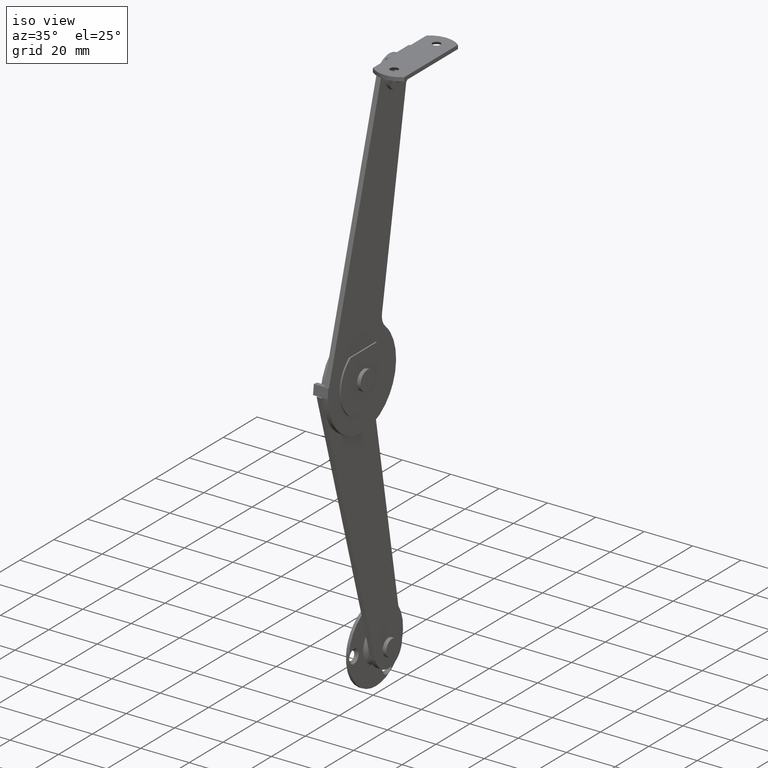
[diagram: clean part render]
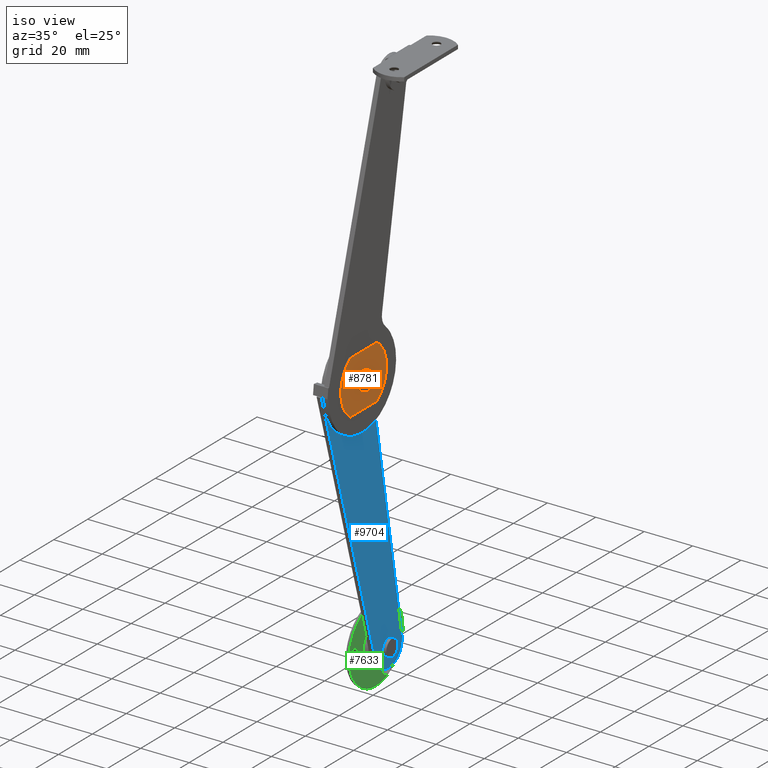
[diagram: same view with three faces highlighted in distinct colors, each labeled with its STEP entity id]
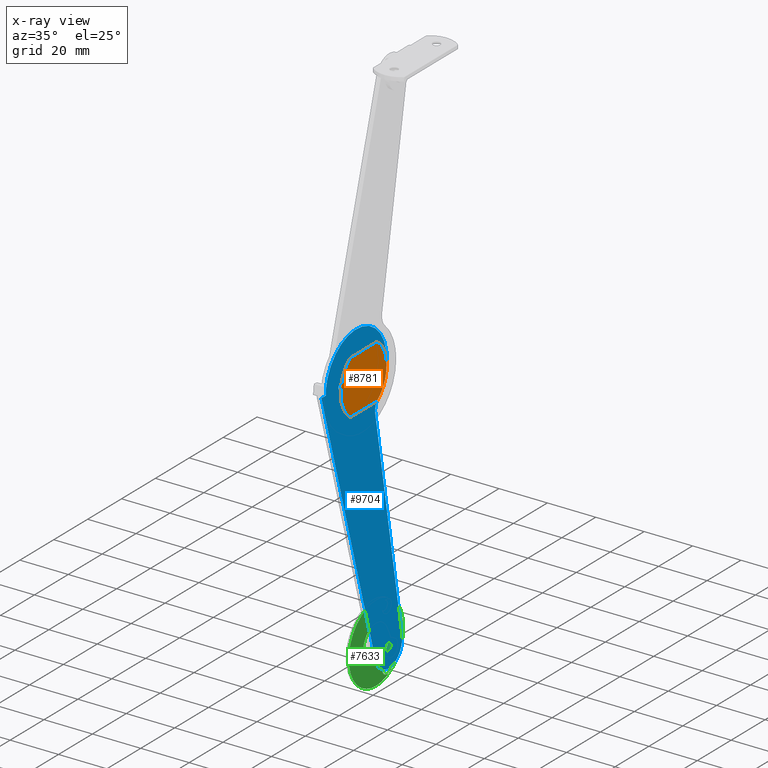
[diagram: x-ray of the same camera — body ghosted, the three highlighted faces saturated]
A machine part, iso view with three faces highlighted in distinct colors.
The next image is the same camera in x-ray (body ghosted, the three faces saturated) — at least one of them is partly hidden behind the body in this view.
Their STEP definitions:

[orange] entity #8781 — the highlighted face is a freeform B-spline surface patch.
#7729=CARTESIAN_POINT('',(9.500000000000000,-19.101287999999951,1.499999999999999));
#7730=VERTEX_POINT('',#7729);
#7731=CARTESIAN_POINT('',(9.500000000000000,-20.596664000404989,0.117688646065020));
#7732=VERTEX_POINT('',#7731);
#7733=CARTESIAN_POINT('',(9.500000000000000,-19.101287999999951,1.499999999999999));
#7734=CARTESIAN_POINT('',(9.500000000000000,-20.487873732886431,1.499999999999999));
#7735=CARTESIAN_POINT('',(9.500000000000002,-20.596664000404992,0.117688646065020));
#7743=(BOUNDED_CURVE()B_SPLINE_CURVE(2,(#7733,#7734,#7735),.UNSPECIFIED.,.F.,.U.)B_SPLINE_CURVE_WITH_KNOTS((3,3),(0.0,0.236331300065717),.UNSPECIFIED.)CURVE()GEOMETRIC_REPRESENTATION_ITEM()RATIONAL_B_SPLINE_CURVE((1.0,0.723120659269537,0.969723354988426))REPRESENTATION_ITEM(''));
#7744=EDGE_CURVE('',#7730,#7732,#7743,.T.);
#7785=CARTESIAN_POINT('',(9.500000000000000,-17.605911999594909,-0.117688646065023));
#7786=VERTEX_POINT('',#7785);
#7792=CARTESIAN_POINT('',(9.500000000000000,-17.605911999594909,-0.117688646065023));
#7793=CARTESIAN_POINT('',(9.500000000000000,-17.601287999999943,-0.058935162996237));
#7794=CARTESIAN_POINT('',(9.500000000000000,-17.601287999999951,-1.169578E-015));
#7795=CARTESIAN_POINT('',(9.500000000000000,-17.601287999999951,1.500000000000000));
#7796=CARTESIAN_POINT('',(9.500000000000000,-19.101287999999951,1.499999999999999));
#7804=(BOUNDED_CURVE()B_SPLINE_CURVE(2,(#7792,#7793,#7794,#7795,#7796),.UNSPECIFIED.,.F.,.U.)B_SPLINE_CURVE_WITH_KNOTS((3,2,3),(0.736331300065717,0.750000000000000,1.0),.UNSPECIFIED.)CURVE()GEOMETRIC_REPRESENTATION_ITEM()RATIONAL_B_SPLINE_CURVE((0.969723354988426,0.983986121917011,1.0,0.707106781186548,1.0))REPRESENTATION_ITEM(''));
#7805=EDGE_CURVE('',#7786,#7730,#7804,.T.);
#7828=CARTESIAN_POINT('',(9.500000000000000,-19.101287999999951,-1.500000000000001));
#7829=VERTEX_POINT('',#7828);
#7830=CARTESIAN_POINT('',(9.500000000000000,-20.596664000404996,0.117688646065020));
#7831=CARTESIAN_POINT('',(9.500000000000000,-20.601287999999951,0.058935162996235));
#7832=CARTESIAN_POINT('',(9.500000000000000,-20.601287999999951,-1.169578E-015));
#7833=CARTESIAN_POINT('',(9.500000000000000,-20.601287999999947,-1.500000000000001));
#7834=CARTESIAN_POINT('',(9.500000000000000,-19.101287999999951,-1.500000000000001));
#7842=(BOUNDED_CURVE()B_SPLINE_CURVE(2,(#7830,#7831,#7832,#7833,#7834),.UNSPECIFIED.,.F.,.U.)B_SPLINE_CURVE_WITH_KNOTS((3,2,3),(0.236331300065717,0.250000000000000,0.500000000000000),.UNSPECIFIED.)CURVE()GEOMETRIC_REPRESENTATION_ITEM()RATIONAL_B_SPLINE_CURVE((0.969723354988426,0.983986121917011,1.0,0.707106781186548,1.0))REPRESENTATION_ITEM(''));
#7843=EDGE_CURVE('',#7732,#7829,#7842,.T.);
#7845=CARTESIAN_POINT('',(9.500000000000000,-19.101287999999951,-1.500000000000001));
#7846=CARTESIAN_POINT('',(9.500000000000000,-17.714702267113463,-1.500000000000000));
#7847=CARTESIAN_POINT('',(9.500000000000000,-17.605911999594905,-0.117688646065023));
#7855=(BOUNDED_CURVE()B_SPLINE_CURVE(2,(#7845,#7846,#7847),.UNSPECIFIED.,.F.,.U.)B_SPLINE_CURVE_WITH_KNOTS((3,3),(0.500000000000000,0.736331300065717),.UNSPECIFIED.)CURVE()GEOMETRIC_REPRESENTATION_ITEM()RATIONAL_B_SPLINE_CURVE((1.0,0.723120659269537,0.969723354988427))REPRESENTATION_ITEM(''));
#7856=EDGE_CURVE('',#7829,#7786,#7855,.T.);
#8199=CARTESIAN_POINT('',(9.500000000000000,-11.275051362627041,11.000000913447320));
#8200=VERTEX_POINT('',#8199);
#8201=CARTESIAN_POINT('',(9.500000000000000,-26.927525921249000,11.000000000000160));
#8202=VERTEX_POINT('',#8201);
#8203=CARTESIAN_POINT('',(9.500000000000000,-11.275051362627041,11.000000913447320));
#8204=CARTESIAN_POINT('',(9.500000000000000,-26.927525921249000,11.000000000000160));
#8205=QUASI_UNIFORM_CURVE('',1,(#8203,#8204),.UNSPECIFIED.,.F.,.U.);
#8206=EDGE_CURVE('',#8200,#8202,#8205,.T.);
#8244=CARTESIAN_POINT('',(9.500000000000000,-11.275055000000179,-11.0));
#8245=VERTEX_POINT('',#8244);
#8246=CARTESIAN_POINT('',(9.500000000000000,-11.275055000000179,-11.0));
#8247=CARTESIAN_POINT('',(9.500000000000000,-5.601289978229050,-6.963254547218265));
#8248=CARTESIAN_POINT('',(9.500000000000000,-5.601288826958422,-0.000000054806431));
#8249=CARTESIAN_POINT('',(9.500000000000000,-5.601287675687794,6.963254437605401));
#8250=CARTESIAN_POINT('',(9.500000000000000,-11.275051362627041,11.000000913447320));
#8258=(BOUNDED_CURVE()B_SPLINE_CURVE(2,(#8246,#8247,#8248,#8249,#8250),.UNSPECIFIED.,.F.,.U.)B_SPLINE_CURVE_WITH_KNOTS((3,2,3),(0.0,0.500000000000000,1.0),.UNSPECIFIED.)CURVE()GEOMETRIC_REPRESENTATION_ITEM()RATIONAL_B_SPLINE_CURVE((1.0,0.888741008094217,1.0,0.888741008094217,1.0))REPRESENTATION_ITEM(''));
#8259=EDGE_CURVE('',#8245,#8200,#8258,.T.);
#8292=CARTESIAN_POINT('',(9.500000000000000,-26.927525921249199,-11.0));
#8293=VERTEX_POINT('',#8292);
#8294=CARTESIAN_POINT('',(9.500000000000000,-26.927525921249199,-11.0));
#8295=CARTESIAN_POINT('',(9.500000000000000,-11.275055000000179,-11.0));
#8296=QUASI_UNIFORM_CURVE('',1,(#8294,#8295),.UNSPECIFIED.,.F.,.U.);
#8297=EDGE_CURVE('',#8293,#8245,#8296,.T.);
#8329=CARTESIAN_POINT('',(9.500000000000000,-26.927525921248989,11.000000000000160));
#8330=CARTESIAN_POINT('',(9.500000000000000,-32.601287999999954,6.963253460285164));
#8331=CARTESIAN_POINT('',(9.500000000000000,-32.601287999999947,0.0));
#8332=CARTESIAN_POINT('',(9.500000000000000,-32.601287999999954,-6.963253460285001));
#8333=CARTESIAN_POINT('',(9.500000000000000,-26.927525921249199,-11.000000000000011));
#8341=(BOUNDED_CURVE()B_SPLINE_CURVE(2,(#8329,#8330,#8331,#8332,#8333),.UNSPECIFIED.,.F.,.U.)B_SPLINE_CURVE_WITH_KNOTS((3,2,3),(0.0,0.500000000000000,1.0),.UNSPECIFIED.)CURVE()GEOMETRIC_REPRESENTATION_ITEM()RATIONAL_B_SPLINE_CURVE((1.0,0.888741055510526,1.0,0.888741055510526,1.0))REPRESENTATION_ITEM(''));
#8342=EDGE_CURVE('',#8202,#8293,#8341,.T.);
#8764=CARTESIAN_POINT('',(9.500000000000108,-33.949937906362130,-12.098900002986420));
#8765=CARTESIAN_POINT('',(9.500000000000108,-4.252638196399884,-12.098900002986420));
#8766=CARTESIAN_POINT('',(9.500000000000108,-33.949937906362130,12.098901506519750));
#8767=CARTESIAN_POINT('',(9.500000000000108,-4.252638196399884,12.098901506519750));
#8768=B_SPLINE_SURFACE_WITH_KNOTS('',1,1,((#8764,#8766),(#8765,#8767)),.UNSPECIFIED.,.F.,.F.,.U.,(2,2),(2,2),(0.0,29.697299709962241),(0.0,24.197801509506171),.UNSPECIFIED.);
#8769=ORIENTED_EDGE('',*,*,#8342,.T.);
#8770=ORIENTED_EDGE('',*,*,#8297,.T.);
#8771=ORIENTED_EDGE('',*,*,#8259,.T.);
#8772=ORIENTED_EDGE('',*,*,#8206,.T.);
#8773=EDGE_LOOP('',(#8769,#8770,#8771,#8772));
#8774=FACE_OUTER_BOUND('',#8773,.T.);
#8775=ORIENTED_EDGE('',*,*,#7856,.F.);
#8776=ORIENTED_EDGE('',*,*,#7843,.F.);
#8777=ORIENTED_EDGE('',*,*,#7744,.F.);
#8778=ORIENTED_EDGE('',*,*,#7805,.F.);
#8779=EDGE_LOOP('',(#8775,#8776,#8777,#8778));
#8780=FACE_BOUND('',#8779,.T.);
#8781=ADVANCED_FACE('',(#8774,#8780),#8768,.T.);

[blue] entity #9704 — the highlighted face is a freeform B-spline surface patch.
#8872=CARTESIAN_POINT('',(6.399994000000130,-28.601287999999951,0.999999999999975));
#8873=VERTEX_POINT('',#8872);
#8874=CARTESIAN_POINT('',(6.399994000000129,-27.604370666721120,0.078459101500214));
#8875=VERTEX_POINT('',#8874);
#8876=CARTESIAN_POINT('',(6.399994000000130,-28.601287999999951,0.999999999999975));
#8877=CARTESIAN_POINT('',(6.399994000000131,-27.676897519079738,0.999999999999975));
#8878=CARTESIAN_POINT('',(6.399994000000129,-27.604370666721124,0.078459101500214));
#8886=(BOUNDED_CURVE()B_SPLINE_CURVE(2,(#8876,#8877,#8878),.UNSPECIFIED.,.F.,.U.)B_SPLINE_CURVE_WITH_KNOTS((3,3),(0.0,0.236331298647588),.UNSPECIFIED.)CURVE()GEOMETRIC_REPRESENTATION_ITEM()RATIONAL_B_SPLINE_CURVE((1.0,0.723120660930979,0.969723352028899))REPRESENTATION_ITEM(''));
#8887=EDGE_CURVE('',#8873,#8875,#8886,.T.);
#8889=CARTESIAN_POINT('',(6.399994000000130,-29.598205333278781,-0.078459101500264));
#8890=VERTEX_POINT('',#8889);
#8891=CARTESIAN_POINT('',(6.399994000000130,-29.598205333278781,-0.078459101500264));
#8892=CARTESIAN_POINT('',(6.399994000000130,-29.601287999999951,-0.039290112806876));
#8893=CARTESIAN_POINT('',(6.399994000000130,-29.601287999999951,-2.495219E-014));
#8894=CARTESIAN_POINT('',(6.399994000000131,-29.601287999999951,0.999999999999975));
#8895=CARTESIAN_POINT('',(6.399994000000130,-28.601287999999951,0.999999999999975));
#8903=(BOUNDED_CURVE()B_SPLINE_CURVE(2,(#8891,#8892,#8893,#8894,#8895),.UNSPECIFIED.,.F.,.U.)B_SPLINE_CURVE_WITH_KNOTS((3,2,3),(0.736331298647588,0.750000000000000,1.0),.UNSPECIFIED.)CURVE()GEOMETRIC_REPRESENTATION_ITEM()RATIONAL_B_SPLINE_CURVE((0.969723352028899,0.983986120255569,1.0,0.707106781186548,1.0))REPRESENTATION_ITEM(''));
#8904=EDGE_CURVE('',#8890,#8873,#8903,.T.);
#8971=CARTESIAN_POINT('',(6.399994000000130,-28.601287999999951,-1.000000000000025));
#8972=VERTEX_POINT('',#8971);
#8973=CARTESIAN_POINT('',(6.399994000000129,-27.604370666721124,0.078459101500214));
#8974=CARTESIAN_POINT('',(6.399994000000130,-27.601287999999954,0.039290112806826));
#8975=CARTESIAN_POINT('',(6.399994000000130,-27.601287999999951,-2.495219E-014));
#8976=CARTESIAN_POINT('',(6.399994000000131,-27.601287999999958,-1.000000000000025));
#8977=CARTESIAN_POINT('',(6.399994000000130,-28.601287999999951,-1.000000000000025));
#8985=(BOUNDED_CURVE()B_SPLINE_CURVE(2,(#8973,#8974,#8975,#8976,#8977),.UNSPECIFIED.,.F.,.U.)B_SPLINE_CURVE_WITH_KNOTS((3,2,3),(0.236331298647588,0.250000000000000,0.500000000000000),.UNSPECIFIED.)CURVE()GEOMETRIC_REPRESENTATION_ITEM()RATIONAL_B_SPLINE_CURVE((0.969723352028899,0.983986120255569,1.0,0.707106781186548,1.0))REPRESENTATION_ITEM(''));
#8986=EDGE_CURVE('',#8875,#8972,#8985,.T.);
#9020=CARTESIAN_POINT('',(6.399994000000130,-28.601287999999951,-1.000000000000025));
#9021=CARTESIAN_POINT('',(6.399994000000130,-29.525678480920163,-1.000000000000025));
#9022=CARTESIAN_POINT('',(6.399994000000130,-29.598205333278777,-0.078459101500264));
#9030=(BOUNDED_CURVE()B_SPLINE_CURVE(2,(#9020,#9021,#9022),.UNSPECIFIED.,.F.,.U.)B_SPLINE_CURVE_WITH_KNOTS((3,3),(0.500000000000000,0.736331298647587),.UNSPECIFIED.)CURVE()GEOMETRIC_REPRESENTATION_ITEM()RATIONAL_B_SPLINE_CURVE((1.0,0.723120660930979,0.969723352028897))REPRESENTATION_ITEM(''));
#9031=EDGE_CURVE('',#8972,#8890,#9030,.T.);
#9058=CARTESIAN_POINT('',(6.399994000000130,-10.594297526314310,0.118034235071934));
#9059=VERTEX_POINT('',#9058);
#9060=CARTESIAN_POINT('',(6.399994000000130,-9.601288000000000,-1.000000000000026));
#9061=VERTEX_POINT('',#9060);
#9062=CARTESIAN_POINT('',(6.399994000000130,-10.594297526314310,0.118034235071934));
#9063=CARTESIAN_POINT('',(6.399994000000130,-10.601288000000002,0.059224120071475));
#9064=CARTESIAN_POINT('',(6.399994000000130,-10.601288000000000,-2.611557E-014));
#9065=CARTESIAN_POINT('',(6.399994000000131,-10.601288000000000,-1.000000000000026));
#9066=CARTESIAN_POINT('',(6.399994000000130,-9.601288000000000,-1.000000000000026));
#9074=(BOUNDED_CURVE()B_SPLINE_CURVE(2,(#9062,#9063,#9064,#9065,#9066),.UNSPECIFIED.,.F.,.U.)B_SPLINE_CURVE_WITH_KNOTS((3,2,3),(0.229562473374316,0.250000000000000,0.500000000000000),.UNSPECIFIED.)CURVE()GEOMETRIC_REPRESENTATION_ITEM()RATIONAL_B_SPLINE_CURVE((0.956026753910876,0.976055948168071,1.0,0.707106781186548,1.0))REPRESENTATION_ITEM(''));
#9075=EDGE_CURVE('',#9059,#9061,#9074,.T.);
#9077=CARTESIAN_POINT('',(6.399994000000130,-8.603153201615875,-0.061048540151942));
#9078=VERTEX_POINT('',#9077);
#9079=CARTESIAN_POINT('',(6.399994000000130,-9.601288000000000,-1.000000000000026));
#9080=CARTESIAN_POINT('',(6.399994000000130,-8.660581934259593,-1.000000000000026));
#9081=CARTESIAN_POINT('',(6.399994000000129,-8.603153201615875,-0.061048540151942));
#9089=(BOUNDED_CURVE()B_SPLINE_CURVE(2,(#9079,#9080,#9081),.UNSPECIFIED.,.F.,.U.)B_SPLINE_CURVE_WITH_KNOTS((3,3),(0.500000000000000,0.739332962028627),.UNSPECIFIED.)CURVE()GEOMETRIC_REPRESENTATION_ITEM()RATIONAL_B_SPLINE_CURVE((1.0,0.719603993533111,0.976072041215970))REPRESENTATION_ITEM(''));
#9090=EDGE_CURVE('',#9061,#9078,#9089,.T.);
#9157=CARTESIAN_POINT('',(6.399994000000130,-9.601288000000000,0.999999999999974));
#9158=VERTEX_POINT('',#9157);
#9159=CARTESIAN_POINT('',(6.399994000000130,-9.601288000000000,0.999999999999974));
#9160=CARTESIAN_POINT('',(6.399994000000131,-10.489462525203407,0.999999999999974));
#9161=CARTESIAN_POINT('',(6.399994000000130,-10.594297526314316,0.118034235071934));
#9169=(BOUNDED_CURVE()B_SPLINE_CURVE(2,(#9159,#9160,#9161),.UNSPECIFIED.,.F.,.U.)B_SPLINE_CURVE_WITH_KNOTS((3,3),(0.0,0.229562473374316),.UNSPECIFIED.)CURVE()GEOMETRIC_REPRESENTATION_ITEM()RATIONAL_B_SPLINE_CURVE((1.0,0.731050833018477,0.956026753910876))REPRESENTATION_ITEM(''));
#9170=EDGE_CURVE('',#9158,#9059,#9169,.T.);
#9204=CARTESIAN_POINT('',(6.399994000000130,-8.603153201615873,-0.061048540151942));
#9205=CARTESIAN_POINT('',(6.399994000000130,-8.601287999999999,-0.030552763917404));
#9206=CARTESIAN_POINT('',(6.399994000000130,-8.601287999999999,-2.611557E-014));
#9207=CARTESIAN_POINT('',(6.399994000000131,-8.601287999999999,0.999999999999974));
#9208=CARTESIAN_POINT('',(6.399994000000130,-9.601288000000000,0.999999999999974));
#9216=(BOUNDED_CURVE()B_SPLINE_CURVE(2,(#9204,#9205,#9206,#9207,#9208),.UNSPECIFIED.,.F.,.U.)B_SPLINE_CURVE_WITH_KNOTS((3,2,3),(0.739332962028627,0.750000000000000,1.0),.UNSPECIFIED.)CURVE()GEOMETRIC_REPRESENTATION_ITEM()RATIONAL_B_SPLINE_CURVE((0.976072041215972,0.987502787653437,1.0,0.707106781186548,1.0))REPRESENTATION_ITEM(''));
#9217=EDGE_CURVE('',#9078,#9158,#9216,.T.);
#9244=CARTESIAN_POINT('',(6.399994000000131,-20.590802289157029,0.177051355252871));
#9245=VERTEX_POINT('',#9244);
#9246=CARTESIAN_POINT('',(6.399994000000130,-19.101287999999951,-1.500000000000001));
#9247=VERTEX_POINT('',#9246);
#9248=CARTESIAN_POINT('',(6.399994000000131,-20.590802289157033,0.177051355252871));
#9249=CARTESIAN_POINT('',(6.399994000000130,-20.601287999999954,0.088836182780144));
#9250=CARTESIAN_POINT('',(6.399994000000130,-20.601287999999951,-1.169578E-015));
#9251=CARTESIAN_POINT('',(6.399994000000131,-20.601287999999947,-1.500000000000001));
#9252=CARTESIAN_POINT('',(6.399994000000130,-19.101287999999951,-1.500000000000001));
#9260=(BOUNDED_CURVE()B_SPLINE_CURVE(2,(#9248,#9249,#9250,#9251,#9252),.UNSPECIFIED.,.F.,.U.)B_SPLINE_CURVE_WITH_KNOTS((3,2,3),(0.229562472774117,0.250000000000000,0.500000000000000),.UNSPECIFIED.)CURVE()GEOMETRIC_REPRESENTATION_ITEM()RATIONAL_B_SPLINE_CURVE((0.956026752734462,0.976055947464894,1.0,0.707106781186548,1.0))REPRESENTATION_ITEM(''));
#9261=EDGE_CURVE('',#9245,#9247,#9260,.T.);
#9263=CARTESIAN_POINT('',(6.399994000000130,-17.604085802579721,-0.091572812777775));
#9264=VERTEX_POINT('',#9263);
#9265=CARTESIAN_POINT('',(6.399994000000130,-19.101287999999951,-1.500000000000001));
#9266=CARTESIAN_POINT('',(6.399994000000131,-17.690228906204702,-1.500000000000002));
#9267=CARTESIAN_POINT('',(6.399994000000130,-17.604085802579714,-0.091572812777775));
#9275=(BOUNDED_CURVE()B_SPLINE_CURVE(2,(#9265,#9266,#9267),.UNSPECIFIED.,.F.,.U.)B_SPLINE_CURVE_WITH_KNOTS((3,3),(0.500000000000000,0.739332961440895),.UNSPECIFIED.)CURVE()GEOMETRIC_REPRESENTATION_ITEM()RATIONAL_B_SPLINE_CURVE((1.0,0.719603994221682,0.976072039956348))REPRESENTATION_ITEM(''));
#9276=EDGE_CURVE('',#9247,#9264,#9275,.T.);
#9343=CARTESIAN_POINT('',(6.399994000000130,-19.101287999999951,1.499999999999999));
#9344=VERTEX_POINT('',#9343);
#9345=CARTESIAN_POINT('',(6.399994000000130,-19.101287999999951,1.499999999999999));
#9346=CARTESIAN_POINT('',(6.399994000000130,-20.433549783040352,1.499999999999998));
#9347=CARTESIAN_POINT('',(6.399994000000131,-20.590802289157033,0.177051355252871));
#9355=(BOUNDED_CURVE()B_SPLINE_CURVE(2,(#9345,#9346,#9347),.UNSPECIFIED.,.F.,.U.)B_SPLINE_CURVE_WITH_KNOTS((3,3),(0.0,0.229562472774117),.UNSPECIFIED.)CURVE()GEOMETRIC_REPRESENTATION_ITEM()RATIONAL_B_SPLINE_CURVE((1.0,0.731050833721653,0.956026752734462))REPRESENTATION_ITEM(''));
#9356=EDGE_CURVE('',#9344,#9245,#9355,.T.);
#9390=CARTESIAN_POINT('',(6.399994000000130,-17.604085802579718,-0.091572812777775));
#9391=CARTESIAN_POINT('',(6.399994000000130,-17.601287999999947,-0.045829148433118));
#9392=CARTESIAN_POINT('',(6.399994000000130,-17.601287999999951,-1.169578E-015));
#9393=CARTESIAN_POINT('',(6.399994000000131,-17.601287999999951,1.500000000000000));
#9394=CARTESIAN_POINT('',(6.399994000000130,-19.101287999999951,1.499999999999999));
#9402=(BOUNDED_CURVE()B_SPLINE_CURVE(2,(#9390,#9391,#9392,#9393,#9394),.UNSPECIFIED.,.F.,.U.)B_SPLINE_CURVE_WITH_KNOTS((3,2,3),(0.739332961440895,0.750000000000000,1.0),.UNSPECIFIED.)CURVE()GEOMETRIC_REPRESENTATION_ITEM()RATIONAL_B_SPLINE_CURVE((0.976072039956349,0.987502786964866,1.0,0.707106781186548,1.0))REPRESENTATION_ITEM(''));
#9403=EDGE_CURVE('',#9264,#9344,#9402,.T.);
#9430=CARTESIAN_POINT('',(6.399994000000131,-1.489514289157079,-107.821804644746900));
#9431=VERTEX_POINT('',#9430);
#9432=CARTESIAN_POINT('',(6.399994000000130,0.0,-109.498855999999800));
#9433=VERTEX_POINT('',#9432);
#9434=CARTESIAN_POINT('',(6.399994000000131,-1.489514289157079,-107.821804644746920));
#9435=CARTESIAN_POINT('',(6.399994000000129,-1.500000000000000,-107.910019817219680));
#9436=CARTESIAN_POINT('',(6.399994000000130,-1.500000000000000,-107.998855999999800));
#9437=CARTESIAN_POINT('',(6.399994000000131,-1.500000000000000,-109.498855999999790));
#9438=CARTESIAN_POINT('',(6.399994000000130,0.0,-109.498855999999800));
#9446=(BOUNDED_CURVE()B_SPLINE_CURVE(2,(#9434,#9435,#9436,#9437,#9438),.UNSPECIFIED.,.F.,.U.)B_SPLINE_CURVE_WITH_KNOTS((3,2,3),(0.229562472774116,0.250000000000000,0.500000000000000),.UNSPECIFIED.)CURVE()GEOMETRIC_REPRESENTATION_ITEM()RATIONAL_B_SPLINE_CURVE((0.956026752734461,0.976055947464894,1.0,0.707106781186548,1.0))REPRESENTATION_ITEM(''));
#9447=EDGE_CURVE('',#9431,#9433,#9446,.T.);
#9449=CARTESIAN_POINT('',(6.399994000000131,1.497202197420230,-108.090428812777600));
#9450=VERTEX_POINT('',#9449);
#9451=CARTESIAN_POINT('',(6.399994000000130,0.0,-109.498855999999800));
#9452=CARTESIAN_POINT('',(6.399994000000131,1.411059093795253,-109.498855999999800));
#9453=CARTESIAN_POINT('',(6.399994000000131,1.497202197420230,-108.090428812777620));
#9461=(BOUNDED_CURVE()B_SPLINE_CURVE(2,(#9451,#9452,#9453),.UNSPECIFIED.,.F.,.U.)B_SPLINE_CURVE_WITH_KNOTS((3,3),(0.500000000000000,0.739332961440895),.UNSPECIFIED.)CURVE()GEOMETRIC_REPRESENTATION_ITEM()RATIONAL_B_SPLINE_CURVE((1.0,0.719603994221682,0.976072039956348))REPRESENTATION_ITEM(''));
#9462=EDGE_CURVE('',#9433,#9450,#9461,.T.);
#9529=CARTESIAN_POINT('',(6.399994000000130,0.0,-106.498855999999800));
#9530=VERTEX_POINT('',#9529);
#9531=CARTESIAN_POINT('',(6.399994000000130,0.0,-106.498855999999800));
#9532=CARTESIAN_POINT('',(6.399994000000133,-1.332261783040397,-106.498855999999800));
#9533=CARTESIAN_POINT('',(6.399994000000131,-1.489514289157079,-107.821804644746920));
#9541=(BOUNDED_CURVE()B_SPLINE_CURVE(2,(#9531,#9532,#9533),.UNSPECIFIED.,.F.,.U.)B_SPLINE_CURVE_WITH_KNOTS((3,3),(0.0,0.229562472774116),.UNSPECIFIED.)CURVE()GEOMETRIC_REPRESENTATION_ITEM()RATIONAL_B_SPLINE_CURVE((1.0,0.731050833721654,0.956026752734461))REPRESENTATION_ITEM(''));
#9542=EDGE_CURVE('',#9530,#9431,#9541,.T.);
#9576=CARTESIAN_POINT('',(6.399994000000131,1.497202197420230,-108.090428812777600));
#9577=CARTESIAN_POINT('',(6.399994000000130,1.500000000000000,-108.044685148432890));
#9578=CARTESIAN_POINT('',(6.399994000000130,1.500000000000000,-107.998855999999800));
#9579=CARTESIAN_POINT('',(6.399994000000131,1.500000000000000,-106.498855999999790));
#9580=CARTESIAN_POINT('',(6.399994000000130,0.0,-106.498855999999800));
#9588=(BOUNDED_CURVE()B_SPLINE_CURVE(2,(#9576,#9577,#9578,#9579,#9580),.UNSPECIFIED.,.F.,.U.)B_SPLINE_CURVE_WITH_KNOTS((3,2,3),(0.739332961440894,0.750000000000000,1.0),.UNSPECIFIED.)CURVE()GEOMETRIC_REPRESENTATION_ITEM()RATIONAL_B_SPLINE_CURVE((0.976072039956347,0.987502786964865,1.0,0.707106781186548,1.0))REPRESENTATION_ITEM(''));
#9589=EDGE_CURVE('',#9450,#9530,#9588,.T.);
#9594=CARTESIAN_POINT('',(6.399994000000111,-41.978827278852812,24.692885292739241));
#9595=CARTESIAN_POINT('',(6.399994000000111,10.374470059868980,24.692885292739241));
#9596=CARTESIAN_POINT('',(6.399994000000111,-41.978827278852812,-122.689130436179600));
#9597=CARTESIAN_POINT('',(6.399994000000111,10.374470059868980,-122.689130436179600));
#9598=B_SPLINE_SURFACE_WITH_KNOTS('',1,1,((#9594,#9596),(#9595,#9597)),.UNSPECIFIED.,.F.,.F.,.U.,(2,2),(2,2),(0.0,52.353297338721781),(0.0,147.382015728918900),.UNSPECIFIED.);
#9599=CARTESIAN_POINT('',(6.399994000000130,-37.101303000000051,1.034713E-015));
#9600=VERTEX_POINT('',#9599);
#9601=CARTESIAN_POINT('',(6.399994000000130,-39.601296068782297,-2.664535E-014));
#9602=VERTEX_POINT('',#9601);
#9603=CARTESIAN_POINT('',(6.399994000000130,-37.101303000000051,1.034713E-015));
#9604=CARTESIAN_POINT('',(6.399994000000130,-39.601296068782297,-2.664535E-014));
#9605=QUASI_UNIFORM_CURVE('',1,(#9603,#9604),.UNSPECIFIED.,.F.,.U.);
#9606=EDGE_CURVE('',#9600,#9602,#9605,.T.);
#9607=ORIENTED_EDGE('',*,*,#9606,.T.);
#9608=CARTESIAN_POINT('',(6.399994000000130,-7.681877691106850,-110.232408134801010));
#9609=VERTEX_POINT('',#9608);
#9610=CARTESIAN_POINT('',(6.399994000000130,-39.601296068782297,-2.664535E-014));
#9611=CARTESIAN_POINT('',(6.399994000000130,-7.681877691106850,-110.232408134801010));
#9612=QUASI_UNIFORM_CURVE('',1,(#9610,#9611),.UNSPECIFIED.,.F.,.U.);
#9613=EDGE_CURVE('',#9602,#9609,#9612,.T.);
#9614=ORIENTED_EDGE('',*,*,#9613,.T.);
#9615=CARTESIAN_POINT('',(6.399994000000130,7.878462702980789,-106.609674428807390));
#9616=VERTEX_POINT('',#9615);
#9617=CARTESIAN_POINT('',(6.399994000000130,-7.681877691106845,-110.232408134801010));
#9618=CARTESIAN_POINT('',(6.399994000000130,-5.566241585523212,-117.508736073942490));
#9619=CARTESIAN_POINT('',(6.399994000000130,1.814031778348678,-115.790472565715900));
#9620=CARTESIAN_POINT('',(6.399994000000130,9.194305142220571,-114.072209057489250));
#9621=CARTESIAN_POINT('',(6.399994000000130,7.878462702980796,-106.609674428807390));
#9629=(BOUNDED_CURVE()B_SPLINE_CURVE(2,(#9617,#9618,#9619,#9620,#9621),.UNSPECIFIED.,.F.,.U.)B_SPLINE_CURVE_WITH_KNOTS((3,2,3),(0.0,0.500000000000000,1.0),.UNSPECIFIED.)CURVE()GEOMETRIC_REPRESENTATION_ITEM()RATIONAL_B_SPLINE_CURVE((1.0,0.726011210554221,1.0,0.726011210554221,1.0))REPRESENTATION_ITEM(''));
#9630=EDGE_CURVE('',#9609,#9616,#9629,.T.);
#9631=ORIENTED_EDGE('',*,*,#9630,.T.);
#9632=CARTESIAN_POINT('',(6.399994000000130,7.877594000000000,-106.604660000000000));
#9633=VERTEX_POINT('',#9632);
#9634=CARTESIAN_POINT('',(6.399994000000130,7.878462702980789,-106.609674428807390));
#9635=CARTESIAN_POINT('',(6.399994000000130,7.877594000000000,-106.604660000000000));
#9636=QUASI_UNIFORM_CURVE('',1,(#9634,#9635),.UNSPECIFIED.,.F.,.U.);
#9637=EDGE_CURVE('',#9616,#9633,#9636,.T.);
#9638=ORIENTED_EDGE('',*,*,#9637,.T.);
#9639=CARTESIAN_POINT('',(6.399994000000130,-7.834135366304619,-17.828890237279001));
#9640=VERTEX_POINT('',#9639);
#9641=CARTESIAN_POINT('',(6.399994000000130,7.877594000000000,-106.604660000000000));
#9642=CARTESIAN_POINT('',(6.399994000000130,-7.834135366304619,-17.828890237279001));
#9643=QUASI_UNIFORM_CURVE('',1,(#9641,#9642),.UNSPECIFIED.,.F.,.U.);
#9644=EDGE_CURVE('',#9633,#9640,#9643,.T.);
#9645=ORIENTED_EDGE('',*,*,#9644,.T.);
#9646=CARTESIAN_POINT('',(6.399994000000130,-6.222050279855890,-12.574767923900479));
#9647=VERTEX_POINT('',#9646);
#9648=CARTESIAN_POINT('',(6.399994000000130,-6.222050279855886,-12.574767923900490));
#9649=CARTESIAN_POINT('',(6.399994000000131,-8.381550103206598,-14.786557382235596));
#9650=CARTESIAN_POINT('',(6.399994000000130,-7.834135366304616,-17.828890237279001));
#9658=(BOUNDED_CURVE()B_SPLINE_CURVE(2,(#9648,#9649,#9650),.UNSPECIFIED.,.F.,.U.)CURVE()GEOMETRIC_REPRESENTATION_ITEM()QUASI_UNIFORM_CURVE()RATIONAL_B_SPLINE_CURVE((1.0,0.888957646434028,1.0))REPRESENTATION_ITEM(''));
#9659=EDGE_CURVE('',#9647,#9640,#9658,.T.);
#9660=ORIENTED_EDGE('',*,*,#9659,.F.);
#9661=CARTESIAN_POINT('',(6.399994000000130,-6.222050279855890,-12.574767923900479));
#9662=CARTESIAN_POINT('',(6.399994000000130,3.387140600215982,-2.732900202962302));
#9663=CARTESIAN_POINT('',(6.399994000000130,-3.585111087136516,9.124021879243985));
#9664=CARTESIAN_POINT('',(6.399994000000130,-10.557362774489016,20.980943961450279));
#9665=CARTESIAN_POINT('',(6.399994000000130,-23.829332792876670,17.367951616041150));
#9666=CARTESIAN_POINT('',(6.399994000000130,-37.101302811264318,13.754959270632028));
#9667=CARTESIAN_POINT('',(6.399994000000130,-37.101303000000051,1.034713E-015));
#9675=(BOUNDED_CURVE()B_SPLINE_CURVE(2,(#9661,#9662,#9663,#9664,#9665,#9666,#9667),.UNSPECIFIED.,.F.,.U.)B_SPLINE_CURVE_WITH_KNOTS((3,2,2,3),(0.0,0.333333333333333,0.666666666666667,1.0),.UNSPECIFIED.)CURVE()GEOMETRIC_REPRESENTATION_ITEM()RATIONAL_B_SPLINE_CURVE((1.0,0.794565387561586,1.0,0.794565387561586,1.0,0.794565387561586,1.0))REPRESENTATION_ITEM(''));
#9676=EDGE_CURVE('',#9647,#9600,#9675,.T.);
#9677=ORIENTED_EDGE('',*,*,#9676,.T.);
#9678=EDGE_LOOP('',(#9607,#9614,#9631,#9638,#9645,#9660,#9677));
#9679=FACE_OUTER_BOUND('',#9678,.T.);
#9680=ORIENTED_EDGE('',*,*,#9462,.F.);
#9681=ORIENTED_EDGE('',*,*,#9447,.F.);
#9682=ORIENTED_EDGE('',*,*,#9542,.F.);
#9683=ORIENTED_EDGE('',*,*,#9589,.F.);
#9684=EDGE_LOOP('',(#9680,#9681,#9682,#9683));
#9685=FACE_BOUND('',#9684,.T.);
#9686=ORIENTED_EDGE('',*,*,#9276,.F.);
#9687=ORIENTED_EDGE('',*,*,#9261,.F.);
#9688=ORIENTED_EDGE('',*,*,#9356,.F.);
#9689=ORIENTED_EDGE('',*,*,#9403,.F.);
#9690=EDGE_LOOP('',(#9686,#9687,#9688,#9689));
#9691=FACE_BOUND('',#9690,.T.);
#9692=ORIENTED_EDGE('',*,*,#9090,.F.);
#9693=ORIENTED_EDGE('',*,*,#9075,.F.);
#9694=ORIENTED_EDGE('',*,*,#9170,.F.);
#9695=ORIENTED_EDGE('',*,*,#9217,.F.);
#9696=EDGE_LOOP('',(#9692,#9693,#9694,#9695));
#9697=FACE_BOUND('',#9696,.T.);
#9698=ORIENTED_EDGE('',*,*,#9031,.T.);
#9699=ORIENTED_EDGE('',*,*,#8904,.T.);
#9700=ORIENTED_EDGE('',*,*,#8887,.T.);
#9701=ORIENTED_EDGE('',*,*,#8986,.T.);
#9702=EDGE_LOOP('',(#9698,#9699,#9700,#9701));
#9703=FACE_BOUND('',#9702,.T.);
#9704=ADVANCED_FACE('',(#9679,#9685,#9691,#9697,#9703),#9598,.F.);

[green] entity #7633 — the highlighted face is a freeform B-spline surface patch.
#5496=CARTESIAN_POINT('',(1.199997000795945,9.291368538827875,-96.520840276284190));
#5497=VERTEX_POINT('',#5496);
#5503=CARTESIAN_POINT('',(1.199997000000130,6.500000000000000,-93.940525746727872));
#5504=VERTEX_POINT('',#5503);
#5505=CARTESIAN_POINT('',(1.199997000000130,6.500000000000000,-93.940525746727872));
#5506=CARTESIAN_POINT('',(1.199997000000130,9.088293369065761,-93.940525746727872));
#5507=CARTESIAN_POINT('',(1.199997000795946,9.291368538827875,-96.520840276284176));
#5515=(BOUNDED_CURVE()B_SPLINE_CURVE(2,(#5505,#5506,#5507),.UNSPECIFIED.,.F.,.U.)B_SPLINE_CURVE_WITH_KNOTS((3,3),(0.0,0.236331299883802),.UNSPECIFIED.)CURVE()GEOMETRIC_REPRESENTATION_ITEM()RATIONAL_B_SPLINE_CURVE((1.0,0.723120659482664,0.969723354608783))REPRESENTATION_ITEM(''));
#5516=EDGE_CURVE('',#5504,#5497,#5515,.T.);
#5518=CARTESIAN_POINT('',(1.199997000795946,3.708631461172125,-96.960211225319995));
#5519=VERTEX_POINT('',#5518);
#5520=CARTESIAN_POINT('',(1.199997000795946,3.708631461172125,-96.960211225319995));
#5521=CARTESIAN_POINT('',(1.199997000000131,3.699999995925774,-96.850538056709780));
#5522=CARTESIAN_POINT('',(1.199997000000130,3.699999995925775,-96.740525750802092));
#5523=CARTESIAN_POINT('',(1.199997000000130,3.699999995925775,-93.940525746727886));
#5524=CARTESIAN_POINT('',(1.199997000000130,6.500000000000000,-93.940525746727872));
#5532=(BOUNDED_CURVE()B_SPLINE_CURVE(2,(#5520,#5521,#5522,#5523,#5524),.UNSPECIFIED.,.F.,.U.)B_SPLINE_CURVE_WITH_KNOTS((3,2,3),(0.736331299883801,0.750000000000000,1.0),.UNSPECIFIED.)CURVE()GEOMETRIC_REPRESENTATION_ITEM()RATIONAL_B_SPLINE_CURVE((0.969723354608782,0.983986121703883,1.0,0.707106781186548,1.0))REPRESENTATION_ITEM(''));
#5533=EDGE_CURVE('',#5519,#5504,#5532,.T.);
#5570=CARTESIAN_POINT('',(1.199997000000130,6.500000000000000,-99.540525754876313));
#5571=VERTEX_POINT('',#5570);
#5572=CARTESIAN_POINT('',(1.199997000000130,6.500000000000000,-99.540525754876313));
#5573=CARTESIAN_POINT('',(1.199997000000130,3.911706630934256,-99.540525754876285));
#5574=CARTESIAN_POINT('',(1.199997000795946,3.708631461172125,-96.960211225319995));
#5582=(BOUNDED_CURVE()B_SPLINE_CURVE(2,(#5572,#5573,#5574),.UNSPECIFIED.,.F.,.U.)B_SPLINE_CURVE_WITH_KNOTS((3,3),(0.500000000000000,0.736331299883801),.UNSPECIFIED.)CURVE()GEOMETRIC_REPRESENTATION_ITEM()RATIONAL_B_SPLINE_CURVE((1.0,0.723120659482665,0.969723354608780))REPRESENTATION_ITEM(''));
#5583=EDGE_CURVE('',#5571,#5519,#5582,.T.);
#5585=CARTESIAN_POINT('',(1.199997000795946,9.291368538827875,-96.520840276284176));
#5586=CARTESIAN_POINT('',(1.199997000000131,9.300000004074224,-96.630513444894405));
#5587=CARTESIAN_POINT('',(1.199997000000130,9.300000004074224,-96.740525750802092));
#5588=CARTESIAN_POINT('',(1.199997000000130,9.300000004074224,-99.540525754876299));
#5589=CARTESIAN_POINT('',(1.199997000000130,6.500000000000000,-99.540525754876313));
#5597=(BOUNDED_CURVE()B_SPLINE_CURVE(2,(#5585,#5586,#5587,#5588,#5589),.UNSPECIFIED.,.F.,.U.)B_SPLINE_CURVE_WITH_KNOTS((3,2,3),(0.236331299883802,0.250000000000000,0.500000000000000),.UNSPECIFIED.)CURVE()GEOMETRIC_REPRESENTATION_ITEM()RATIONAL_B_SPLINE_CURVE((0.969723354608783,0.983986121703884,1.0,0.707106781186548,1.0))REPRESENTATION_ITEM(''));
#5598=EDGE_CURVE('',#5497,#5571,#5597,.T.);
#5824=CARTESIAN_POINT('',(1.199997000795945,9.291368538827879,-119.037500774679700));
#5825=VERTEX_POINT('',#5824);
#5831=CARTESIAN_POINT('',(1.199997000000130,6.500000000000000,-116.457186245123400));
#5832=VERTEX_POINT('',#5831);
#5833=CARTESIAN_POINT('',(1.199997000000130,6.500000000000000,-116.457186245123400));
#5834=CARTESIAN_POINT('',(1.199997000000130,9.088293369065758,-116.457186245123370));
#5835=CARTESIAN_POINT('',(1.199997000795946,9.291368538827879,-119.037500774679670));
#5843=(BOUNDED_CURVE()B_SPLINE_CURVE(2,(#5833,#5834,#5835),.UNSPECIFIED.,.F.,.U.)B_SPLINE_CURVE_WITH_KNOTS((3,3),(0.0,0.236331299883801),.UNSPECIFIED.)CURVE()GEOMETRIC_REPRESENTATION_ITEM()RATIONAL_B_SPLINE_CURVE((1.0,0.723120659482664,0.969723354608782))REPRESENTATION_ITEM(''));
#5844=EDGE_CURVE('',#5832,#5825,#5843,.T.);
#5846=CARTESIAN_POINT('',(1.199997000795946,3.708631461172119,-119.476871723715500));
#5847=VERTEX_POINT('',#5846);
#5848=CARTESIAN_POINT('',(1.199997000795946,3.708631461172119,-119.476871723715520));
#5849=CARTESIAN_POINT('',(1.199997000000130,3.699999995925769,-119.367198555105320));
#5850=CARTESIAN_POINT('',(1.199997000000130,3.699999995925769,-119.257186249197600));
#5851=CARTESIAN_POINT('',(1.199997000000130,3.699999995925771,-116.457186245123380));
#5852=CARTESIAN_POINT('',(1.199997000000130,6.500000000000000,-116.457186245123400));
#5860=(BOUNDED_CURVE()B_SPLINE_CURVE(2,(#5848,#5849,#5850,#5851,#5852),.UNSPECIFIED.,.F.,.U.)B_SPLINE_CURVE_WITH_KNOTS((3,2,3),(0.736331299883802,0.750000000000000,1.0),.UNSPECIFIED.)CURVE()GEOMETRIC_REPRESENTATION_ITEM()RATIONAL_B_SPLINE_CURVE((0.969723354608782,0.983986121703884,1.0,0.707106781186548,1.0))REPRESENTATION_ITEM(''));
#5861=EDGE_CURVE('',#5847,#5832,#5860,.T.);
#5898=CARTESIAN_POINT('',(1.199997000000130,6.500000000000000,-122.057186253271790));
#5899=VERTEX_POINT('',#5898);
#5900=CARTESIAN_POINT('',(1.199997000000130,6.500000000000000,-122.057186253271790));
#5901=CARTESIAN_POINT('',(1.199997000000130,3.911706630934253,-122.057186253271820));
#5902=CARTESIAN_POINT('',(1.199997000795946,3.708631461172119,-119.476871723715490));
#5910=(BOUNDED_CURVE()B_SPLINE_CURVE(2,(#5900,#5901,#5902),.UNSPECIFIED.,.F.,.U.)B_SPLINE_CURVE_WITH_KNOTS((3,3),(0.500000000000000,0.736331299883801),.UNSPECIFIED.)CURVE()GEOMETRIC_REPRESENTATION_ITEM()RATIONAL_B_SPLINE_CURVE((1.0,0.723120659482665,0.969723354608780))REPRESENTATION_ITEM(''));
#5911=EDGE_CURVE('',#5899,#5847,#5910,.T.);
#5913=CARTESIAN_POINT('',(1.199997000795945,9.291368538827879,-119.037500774679740));
#5914=CARTESIAN_POINT('',(1.199997000000130,9.300000004074231,-119.147173943289900));
#5915=CARTESIAN_POINT('',(1.199997000000130,9.300000004074230,-119.257186249197600));
#5916=CARTESIAN_POINT('',(1.199997000000130,9.300000004074230,-122.057186253271820));
#5917=CARTESIAN_POINT('',(1.199997000000130,6.500000000000000,-122.057186253271790));
#5925=(BOUNDED_CURVE()B_SPLINE_CURVE(2,(#5913,#5914,#5915,#5916,#5917),.UNSPECIFIED.,.F.,.U.)B_SPLINE_CURVE_WITH_KNOTS((3,2,3),(0.236331299883802,0.250000000000000,0.500000000000000),.UNSPECIFIED.)CURVE()GEOMETRIC_REPRESENTATION_ITEM()RATIONAL_B_SPLINE_CURVE((0.969723354608782,0.983986121703883,1.0,0.707106781186548,1.0))REPRESENTATION_ITEM(''));
#5926=EDGE_CURVE('',#5825,#5899,#5925,.T.);
#6152=CARTESIAN_POINT('',(1.199997000795946,-10.208631461172130,-107.779170525481900));
#6153=VERTEX_POINT('',#6152);
#6159=CARTESIAN_POINT('',(1.199997000000130,-13.0,-105.198855995925600));
#6160=VERTEX_POINT('',#6159);
#6161=CARTESIAN_POINT('',(1.199997000000130,-13.0,-105.198855995925600));
#6162=CARTESIAN_POINT('',(1.199997000000130,-10.411706630934249,-105.198855995925570));
#6163=CARTESIAN_POINT('',(1.199997000795946,-10.208631461172125,-107.779170525481900));
#6171=(BOUNDED_CURVE()B_SPLINE_CURVE(2,(#6161,#6162,#6163),.UNSPECIFIED.,.F.,.U.)B_SPLINE_CURVE_WITH_KNOTS((3,3),(0.0,0.236331299883801),.UNSPECIFIED.)CURVE()GEOMETRIC_REPRESENTATION_ITEM()RATIONAL_B_SPLINE_CURVE((1.0,0.723120659482665,0.969723354608781))REPRESENTATION_ITEM(''));
#6172=EDGE_CURVE('',#6160,#6153,#6171,.T.);
#6174=CARTESIAN_POINT('',(1.199997000795945,-15.791368538827880,-108.218541474517710));
#6175=VERTEX_POINT('',#6174);
#6176=CARTESIAN_POINT('',(1.199997000795946,-15.791368538827882,-108.218541474517750));
#6177=CARTESIAN_POINT('',(1.199997000000130,-15.800000004074224,-108.108868305907480));
#6178=CARTESIAN_POINT('',(1.199997000000130,-15.800000004074221,-107.998855999999800));
#6179=CARTESIAN_POINT('',(1.199997000000130,-15.800000004074219,-105.198855995925570));
#6180=CARTESIAN_POINT('',(1.199997000000130,-13.0,-105.198855995925600));
#6188=(BOUNDED_CURVE()B_SPLINE_CURVE(2,(#6176,#6177,#6178,#6179,#6180),.UNSPECIFIED.,.F.,.U.)B_SPLINE_CURVE_WITH_KNOTS((3,2,3),(0.736331299883802,0.750000000000000,1.0),.UNSPECIFIED.)CURVE()GEOMETRIC_REPRESENTATION_ITEM()RATIONAL_B_SPLINE_CURVE((0.969723354608782,0.983986121703884,1.0,0.707106781186548,1.0))REPRESENTATION_ITEM(''));
#6189=EDGE_CURVE('',#6175,#6160,#6188,.T.);
#6226=CARTESIAN_POINT('',(1.199997000000130,-13.0,-110.798856004074000));
#6227=VERTEX_POINT('',#6226);
#6228=CARTESIAN_POINT('',(1.199997000000130,-13.0,-110.798856004074000));
#6229=CARTESIAN_POINT('',(1.199997000000130,-15.588293369065747,-110.798856004074030));
#6230=CARTESIAN_POINT('',(1.199997000795945,-15.791368538827875,-108.218541474517680));
#6238=(BOUNDED_CURVE()B_SPLINE_CURVE(2,(#6228,#6229,#6230),.UNSPECIFIED.,.F.,.U.)B_SPLINE_CURVE_WITH_KNOTS((3,3),(0.500000000000000,0.736331299883801),.UNSPECIFIED.)CURVE()GEOMETRIC_REPRESENTATION_ITEM()RATIONAL_B_SPLINE_CURVE((1.0,0.723120659482665,0.969723354608780))REPRESENTATION_ITEM(''));
#6239=EDGE_CURVE('',#6227,#6175,#6238,.T.);
#6241=CARTESIAN_POINT('',(1.199997000795946,-10.208631461172125,-107.779170525481930));
#6242=CARTESIAN_POINT('',(1.199997000000130,-10.199999995925770,-107.888843694092090));
#6243=CARTESIAN_POINT('',(1.199997000000130,-10.199999995925770,-107.998855999999800));
#6244=CARTESIAN_POINT('',(1.199997000000130,-10.199999995925774,-110.798856004074030));
#6245=CARTESIAN_POINT('',(1.199997000000130,-13.0,-110.798856004074000));
#6253=(BOUNDED_CURVE()B_SPLINE_CURVE(2,(#6241,#6242,#6243,#6244,#6245),.UNSPECIFIED.,.F.,.U.)B_SPLINE_CURVE_WITH_KNOTS((3,2,3),(0.236331299883801,0.250000000000000,0.500000000000000),.UNSPECIFIED.)CURVE()GEOMETRIC_REPRESENTATION_ITEM()RATIONAL_B_SPLINE_CURVE((0.969723354608781,0.983986121703883,1.0,0.707106781186548,1.0))REPRESENTATION_ITEM(''));
#6254=EDGE_CURVE('',#6153,#6227,#6253,.T.);
#6797=CARTESIAN_POINT('',(1.199996999986170,-7.486010988170849,-108.456720046610800));
#6798=VERTEX_POINT('',#6797);
#6804=CARTESIAN_POINT('',(1.199997000000130,0.0,-115.498855999999800));
#6805=VERTEX_POINT('',#6804);
#6806=CARTESIAN_POINT('',(1.199997000000130,0.0,-115.498855999999800));
#6807=CARTESIAN_POINT('',(1.199997000000130,-7.055295501606099,-115.498855999999780));
#6808=CARTESIAN_POINT('',(1.199996999986170,-7.486010988170849,-108.456720046610780));
#6816=(BOUNDED_CURVE()B_SPLINE_CURVE(2,(#6806,#6807,#6808),.UNSPECIFIED.,.F.,.U.)B_SPLINE_CURVE_WITH_KNOTS((3,3),(0.500000000000000,0.739332962237413),.UNSPECIFIED.)CURVE()GEOMETRIC_REPRESENTATION_ITEM()RATIONAL_B_SPLINE_CURVE((1.0,0.719603993288503,0.976072041663439))REPRESENTATION_ITEM(''));
#6817=EDGE_CURVE('',#6805,#6798,#6816,.T.);
#6819=CARTESIAN_POINT('',(1.199997000000130,0.0,-100.498855999999800));
#6820=VERTEX_POINT('',#6819);
#6821=CARTESIAN_POINT('',(1.199997000000130,0.0,-100.498855999999800));
#6822=CARTESIAN_POINT('',(1.199997000000130,7.500000000000000,-100.498855999999800));
#6823=CARTESIAN_POINT('',(1.199997000000130,7.500000000000000,-107.998855999999800));
#6824=CARTESIAN_POINT('',(1.199997000000130,7.500000000000000,-115.498855999999800));
#6825=CARTESIAN_POINT('',(1.199997000000130,0.0,-115.498855999999800));
#6833=(BOUNDED_CURVE()B_SPLINE_CURVE(2,(#6821,#6822,#6823,#6824,#6825),.UNSPECIFIED.,.F.,.U.)B_SPLINE_CURVE_WITH_KNOTS((3,2,3),(0.0,0.250000000000000,0.500000000000000),.UNSPECIFIED.)CURVE()GEOMETRIC_REPRESENTATION_ITEM()RATIONAL_B_SPLINE_CURVE((1.0,0.707106781186547,1.0,0.707106781186547,1.0))REPRESENTATION_ITEM(''));
#6834=EDGE_CURVE('',#6820,#6805,#6833,.T.);
#6836=CARTESIAN_POINT('',(1.199996999813245,-2.637134809720979,-100.977779159660200));
#6837=VERTEX_POINT('',#6836);
#6838=CARTESIAN_POINT('',(1.199996999813245,-2.637134809720979,-100.977779159660190));
#6839=CARTESIAN_POINT('',(1.199997000000131,-1.362055397402322,-100.498855999999800));
#6840=CARTESIAN_POINT('',(1.199997000000130,0.0,-100.498855999999800));
#6848=(BOUNDED_CURVE()B_SPLINE_CURVE(2,(#6838,#6839,#6840),.UNSPECIFIED.,.F.,.U.)B_SPLINE_CURVE_WITH_KNOTS((3,3),(0.940284170821371,1.0),.UNSPECIFIED.)CURVE()GEOMETRIC_REPRESENTATION_ITEM()RATIONAL_B_SPLINE_CURVE((0.893499554540877,0.930038554311028,1.0))REPRESENTATION_ITEM(''));
#6849=EDGE_CURVE('',#6837,#6820,#6848,.T.);
#6889=CARTESIAN_POINT('',(1.199996999986170,-7.486010988170849,-108.456720046610810));
#6890=CARTESIAN_POINT('',(1.199997000000131,-7.500000000000000,-108.228001724838280));
#6891=CARTESIAN_POINT('',(1.199997000000130,-7.500000000000000,-107.998855999999800));
#6892=CARTESIAN_POINT('',(1.199997000000130,-7.500000000000000,-102.804284035015670));
#6893=CARTESIAN_POINT('',(1.199996999813245,-2.637134809720979,-100.977779159660190));
#6901=(BOUNDED_CURVE()B_SPLINE_CURVE(2,(#6889,#6890,#6891,#6892,#6893),.UNSPECIFIED.,.F.,.U.)B_SPLINE_CURVE_WITH_KNOTS((3,2,3),(0.739332962237413,0.750000000000000,0.940284170821370),.UNSPECIFIED.)CURVE()GEOMETRIC_REPRESENTATION_ITEM()RATIONAL_B_SPLINE_CURVE((0.976072041663439,0.987502787898045,1.0,0.777068226875520,0.893499554540876))REPRESENTATION_ITEM(''));
#6902=EDGE_CURVE('',#6798,#6837,#6901,.T.);
#6930=CARTESIAN_POINT('',(1.199997000000064,-15.888152421782641,-106.110308245188610));
#6931=VERTEX_POINT('',#6930);
#6932=CARTESIAN_POINT('',(1.199997000000064,0.0,-123.998855999999800));
#6933=VERTEX_POINT('',#6932);
#6934=CARTESIAN_POINT('',(1.199997000000064,-15.888152421782632,-106.110308245188520));
#6935=CARTESIAN_POINT('',(1.199997000000064,-15.999999999999998,-107.051270085262980));
#6936=CARTESIAN_POINT('',(1.199997000000064,-16.0,-107.998855999999800));
#6937=CARTESIAN_POINT('',(1.199997000000064,-15.999999999999998,-123.998855999999780));
#6938=CARTESIAN_POINT('',(1.199997000000064,0.0,-123.998855999999800));
#6946=(BOUNDED_CURVE()B_SPLINE_CURVE(2,(#6934,#6935,#6936,#6937,#6938),.UNSPECIFIED.,.F.,.U.)B_SPLINE_CURVE_WITH_KNOTS((3,2,3),(0.229562473509196,0.250000000000000,0.500000000000000),.UNSPECIFIED.)CURVE()GEOMETRIC_REPRESENTATION_ITEM()RATIONAL_B_SPLINE_CURVE((0.956026754175248,0.976055948326093,1.0,0.707106781186548,1.0))REPRESENTATION_ITEM(''));
#6947=EDGE_CURVE('',#6931,#6933,#6946,.T.);
#6988=CARTESIAN_POINT('',(1.199997000000064,15.970156774727940,-108.975632632916100));
#6989=VERTEX_POINT('',#6988);
#6995=CARTESIAN_POINT('',(1.199997000000064,0.0,-123.998855999999800));
#6996=CARTESIAN_POINT('',(1.199997000000064,15.051297069813963,-123.998855999999780));
#6997=CARTESIAN_POINT('',(1.199997000000064,15.970156774727938,-108.975632632916060));
#7005=(BOUNDED_CURVE()B_SPLINE_CURVE(2,(#6995,#6996,#6997),.UNSPECIFIED.,.F.,.U.)B_SPLINE_CURVE_WITH_KNOTS((3,3),(0.500000000000000,0.739332962234220),.UNSPECIFIED.)CURVE()GEOMETRIC_REPRESENTATION_ITEM()RATIONAL_B_SPLINE_CURVE((1.0,0.719603993292243,0.976072041656596))REPRESENTATION_ITEM(''));
#7006=EDGE_CURVE('',#6933,#6989,#7005,.T.);
#7029=CARTESIAN_POINT('',(1.199997000000064,0.0,-91.998855999999790));
#7030=VERTEX_POINT('',#7029);
#7031=CARTESIAN_POINT('',(1.199997000000064,0.0,-91.998855999999790));
#7032=CARTESIAN_POINT('',(1.199997000000064,-14.210792414675879,-91.998855999999776));
#7033=CARTESIAN_POINT('',(1.199997000000063,-15.888152421782635,-106.110308245188550));
#7041=(BOUNDED_CURVE()B_SPLINE_CURVE(2,(#7031,#7032,#7033),.UNSPECIFIED.,.F.,.U.)B_SPLINE_CURVE_WITH_KNOTS((3,3),(0.0,0.229562473509196),.UNSPECIFIED.)CURVE()GEOMETRIC_REPRESENTATION_ITEM()RATIONAL_B_SPLINE_CURVE((1.0,0.731050832860454,0.956026754175247))REPRESENTATION_ITEM(''));
#7042=EDGE_CURVE('',#7030,#6931,#7041,.T.);
#7044=CARTESIAN_POINT('',(1.199997000000065,15.970156774727938,-108.975632632916060));
#7045=CARTESIAN_POINT('',(1.199997000000063,15.999999999999998,-108.487700213136700));
#7046=CARTESIAN_POINT('',(1.199997000000064,16.0,-107.998855999999800));
#7047=CARTESIAN_POINT('',(1.199997000000064,15.999999999999998,-91.998855999999790));
#7048=CARTESIAN_POINT('',(1.199997000000064,0.0,-91.998855999999790));
#7056=(BOUNDED_CURVE()B_SPLINE_CURVE(2,(#7044,#7045,#7046,#7047,#7048),.UNSPECIFIED.,.F.,.U.)B_SPLINE_CURVE_WITH_KNOTS((3,2,3),(0.739332962234221,0.750000000000000,1.0),.UNSPECIFIED.)CURVE()GEOMETRIC_REPRESENTATION_ITEM()RATIONAL_B_SPLINE_CURVE((0.976072041656597,0.987502787894305,1.0,0.707106781186548,1.0))REPRESENTATION_ITEM(''));
#7057=EDGE_CURVE('',#6989,#7030,#7056,.T.);
#7598=CARTESIAN_POINT('',(1.199997000000110,-17.598109832567971,-90.400455575562262));
#7599=CARTESIAN_POINT('',(1.199997000000110,17.598010555071639,-90.400455575562262));
#7600=CARTESIAN_POINT('',(1.199997000000110,-17.598109832567971,-125.597254421721300));
#7601=CARTESIAN_POINT('',(1.199997000000110,17.598010555071639,-125.597254421721300));
#7602=B_SPLINE_SURFACE_WITH_KNOTS('',1,1,((#7598,#7600),(#7599,#7601)),.UNSPECIFIED.,.F.,.F.,.U.,(2,2),(2,2),(0.0,35.196120387639610),(0.0,35.196798846158977),.UNSPECIFIED.);
#7603=ORIENTED_EDGE('',*,*,#7042,.T.);
#7604=ORIENTED_EDGE('',*,*,#6947,.T.);
#7605=ORIENTED_EDGE('',*,*,#7006,.T.);
#7606=ORIENTED_EDGE('',*,*,#7057,.T.);
#7607=EDGE_LOOP('',(#7603,#7604,#7605,#7606));
#7608=FACE_OUTER_BOUND('',#7607,.T.);
#7609=ORIENTED_EDGE('',*,*,#6834,.T.);
#7610=ORIENTED_EDGE('',*,*,#6817,.T.);
#7611=ORIENTED_EDGE('',*,*,#6902,.T.);
#7612=ORIENTED_EDGE('',*,*,#6849,.T.);
#7613=EDGE_LOOP('',(#7609,#7610,#7611,#7612));
#7614=FACE_BOUND('',#7613,.T.);
#7615=ORIENTED_EDGE('',*,*,#6239,.T.);
#7616=ORIENTED_EDGE('',*,*,#6189,.T.);
#7617=ORIENTED_EDGE('',*,*,#6172,.T.);
#7618=ORIENTED_EDGE('',*,*,#6254,.T.);
#7619=EDGE_LOOP('',(#7615,#7616,#7617,#7618));
#7620=FACE_BOUND('',#7619,.T.);
#7621=ORIENTED_EDGE('',*,*,#5911,.T.);
#7622=ORIENTED_EDGE('',*,*,#5861,.T.);
#7623=ORIENTED_EDGE('',*,*,#5844,.T.);
#7624=ORIENTED_EDGE('',*,*,#5926,.T.);
#7625=EDGE_LOOP('',(#7621,#7622,#7623,#7624));
#7626=FACE_BOUND('',#7625,.T.);
#7627=ORIENTED_EDGE('',*,*,#5583,.T.);
#7628=ORIENTED_EDGE('',*,*,#5533,.T.);
#7629=ORIENTED_EDGE('',*,*,#5516,.T.);
#7630=ORIENTED_EDGE('',*,*,#5598,.T.);
#7631=EDGE_LOOP('',(#7627,#7628,#7629,#7630));
#7632=FACE_BOUND('',#7631,.T.);
#7633=ADVANCED_FACE('',(#7608,#7614,#7620,#7626,#7632),#7602,.F.);